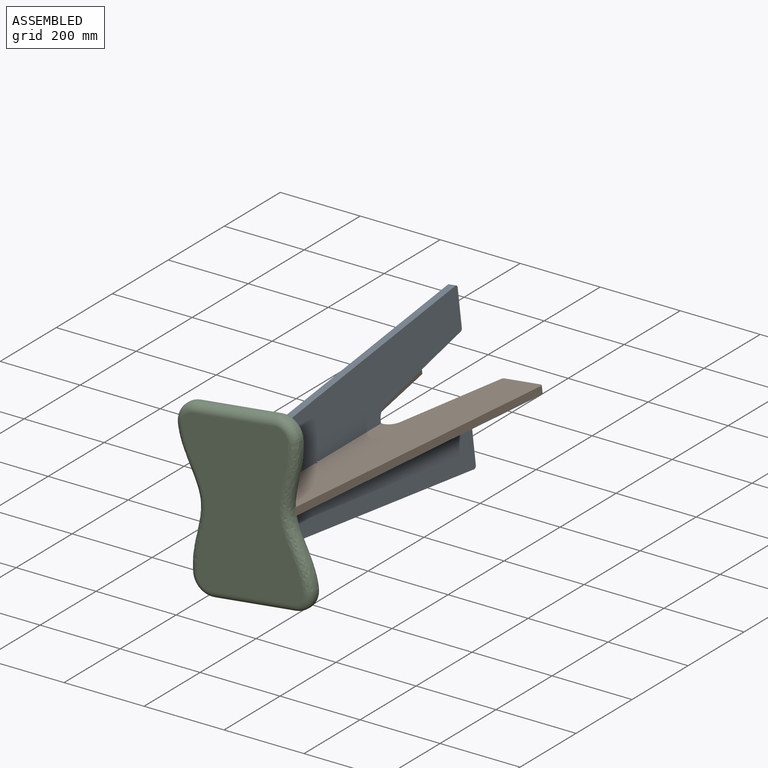
[diagram: assembled view]
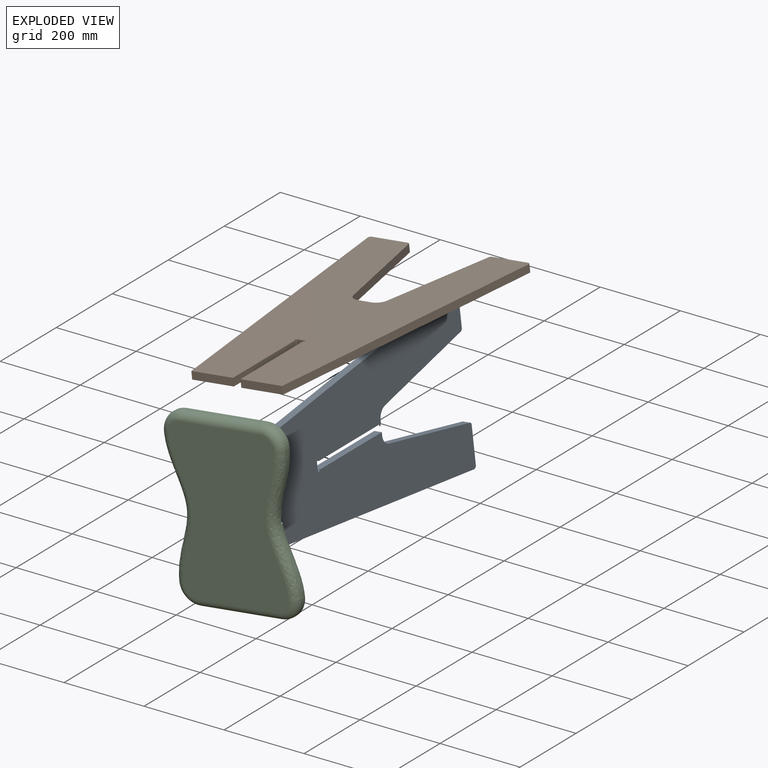
[diagram: exploded view]
GUIDED TOUR — MATED ASSEMBLY (Onshape document eadde35f4169aba6970268f0, AutoMate assembly eadde35f4169aba6970268f0_e1dc698c1c3cd5d12a92e205_ca70cda2a63ecbb2fab8a444_default)

This assembly has 3 components, labeled P0..P2 below (a component is one placed occurrence of a part; the same part can appear more than once), held together by 4 mates. A mate is a constraint between two components; its type names the relative motion it leaves free:
  PLANAR — leaves sliding in the plane through the listed point (normal = the listed direction) and rotation about that normal free.
Axis/direction vectors are unit vectors and 'through' points are millimeter coordinates, both in the assembly's world frame.

MATES
  1. PLANAR "Planar 4": P2 <-> P0, direction (0.000, 1.000, 0.000) through (-286.63, -699.38, 28.16) mm
  2. PLANAR "Planar 3": P1 <-> P0, direction (0.116, 0.000, -0.993) through (-285.52, -323.23, 18.70) mm
  3. PLANAR "Planar 2": P1 <-> P0, direction (-0.993, 0.000, -0.116) through (-276.06, -699.38, 19.80) mm
  4. PLANAR "Planar 1": P1 <-> P0, direction (0.000, -1.000, 0.000) through (-286.63, -470.78, 28.16) mm

ASSEMBLY ORDER
  1. P2 — the base component [order verified]
  2. P1 [order verified]
  3. P0 [order verified]
Order-tag legend:
  [order verified] — this step's position reverses a verified removal order: the component was checked to insert without passing through the ones already placed.

Of the 3 components, 2 carry the full construction recipe — the FeatureScript program that regenerates the part's solid from scratch; the rest are supplied as boundary geometry only.
Each toured component is shown spotlighted twice — in the assembled view, then in the exploded view, where a leader line traces a displaced component back to its assembled socket (saturated green if recipe-attached, orange if geometry-only; every other component desaturated gray) — followed by its recipe or geometry summary and the mates that hold it.
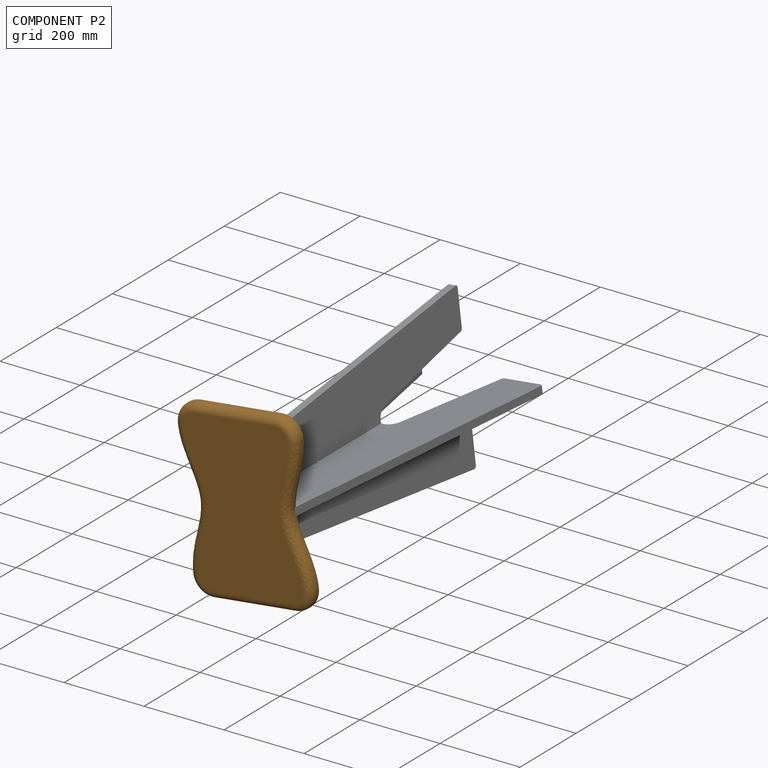
[diagram: component P2 — assembled]
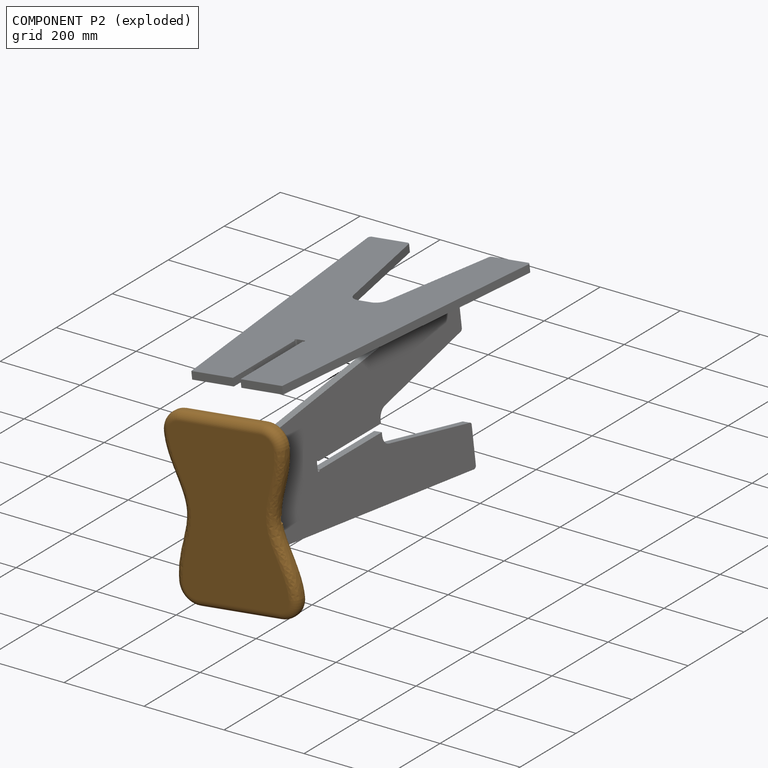
[diagram: component P2 — exploded]
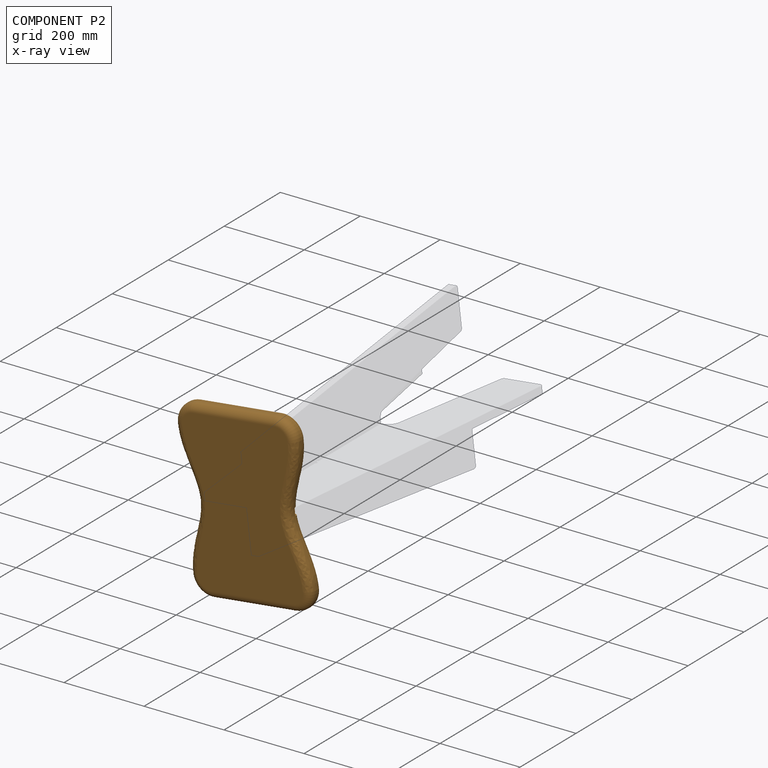
[diagram: component P2 — x-ray view]
COMPONENT P2 — geometry summary (no construction recipe available for this part):
  bounding box: 458.1 x 313.2 x 38.1 mm
  B-rep topology: 1 solid, 44 faces, 212 edges
  volume: 4208558 mm^3 (77% of its bounding box)
  symmetry: 2-fold rotationally symmetric about the z axis; mirror-symmetric across its x mid-plane, y mid-plane
Held by: PLANAR mate "Planar 4" to P0.
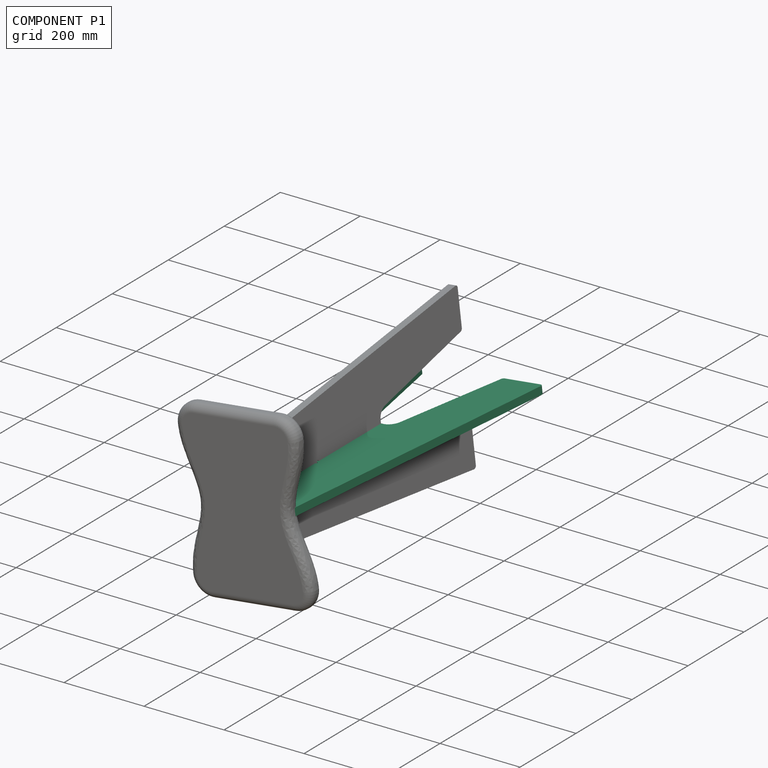
[diagram: component P1 — assembled]
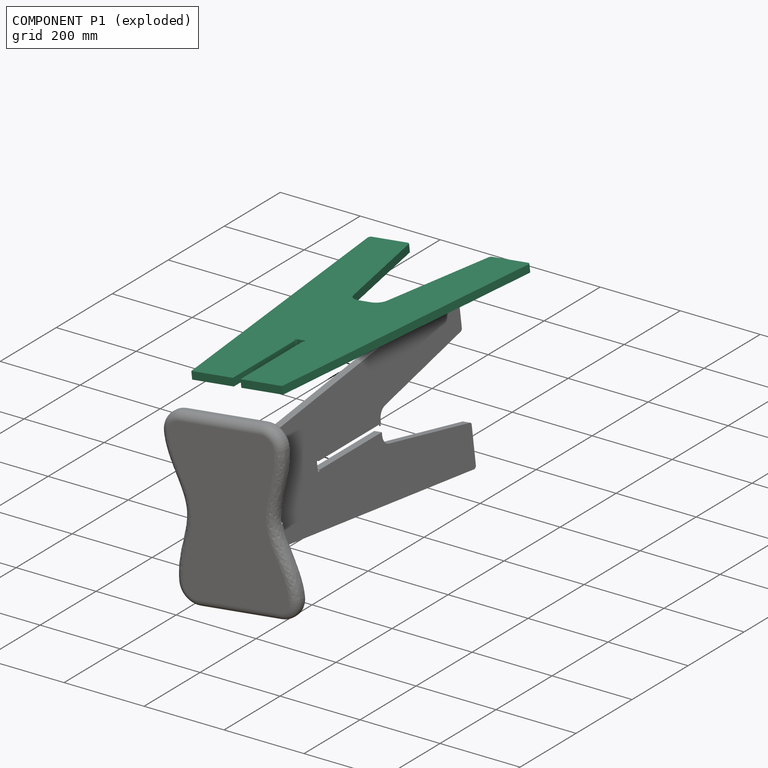
[diagram: component P1 — exploded]
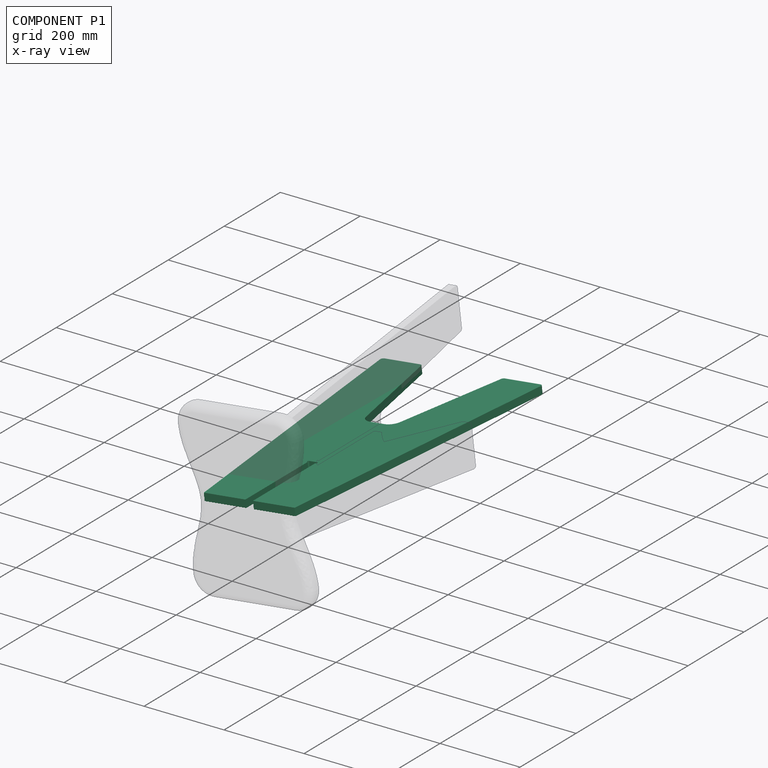
[diagram: component P1 — x-ray view]
COMPONENT P1 — recipe-attached (CADFS 00811773, mesh-verified: the recipe's output STEP matches this component's geometry to below the mesh-comparison resolution (tessellation chordal tolerance ~1.29 mm)).
Held by: PLANAR mate "Planar 3" to P0; PLANAR mate "Planar 2" to P0; PLANAR mate "Planar 1" to P0.
Construction recipe (FeatureScript — the CAD program that rebuilds this solid; sketch coordinates are in the units given by the * unit suffixes, e.g. mm):

FeatureScript 1511;
import(path : "onshape/std/geometry.fs", version : "1511.0");
import(path : "onshape/std/common.fs", version : "1511.0");
const mm = millimeter;
const VERTEX = EntityType.VERTEX;
const EDGE = EntityType.EDGE;
const FACE = EntityType.FACE;
const BODY = EntityType.BODY;
function v(x, y){return vector(x, y);}
function OD(order){return orderDisambiguation(order);}
function OSD(set){return originalSetDisambiguation(set);}
function TD(topology){return topologyDisambiguation(topology);}
function TDD(query){return trueDependencyDisambiguation(query);}
function sQuery(a, b, c) {return sketchEntityQuery(a, b, c);}

annotation { "Feature Type Name" : "Feature", "Feature Type Description" : "" }
export const myFeature = defineFeature(function(context is Context, id is Id, definition is map)
    precondition{}
    {
        {
            var Q0;
            Q0=qCreatedBy(makeId("Front.planeOp"),FACE);
            var sketch = newSketch(context, id + "F0", { "sketchPlane" : qUnion([Q0])});
            skLineSegment(sketch, "E0", {"start": v(-202.37, -297.71) * mm, "end": v(-114.3, 457.2) * mm});
            skLineSegment(sketch, "E1", {"start": v(-114.3, 457.2) * mm, "end": v(9.52, 457.2) * mm});
            skLineSegment(sketch, "E2", {"start": v(-9.53, 228.6) * mm, "end": v(9.53, 228.6) * mm});
            skLineSegment(sketch, "E3", {"start": v(9.52, 457.2) * mm, "end": v(114.3, 457.2) * mm});
            skLineSegment(sketch, "E4", {"start": v(114.3, 457.2) * mm, "end": v(202.37, -297.71) * mm});
            skLineSegment(sketch, "E5", {"start": v(196.07, -304.8) * mm, "end": v(106.76, -304.8) * mm});
            skLineSegment(sketch, "E6", {"start": v(100.55, -299.75) * mm, "end": v(42.31, -20.22) * mm});
            skLineSegment(sketch, "E7", {"start": v(17.45, 0) * mm, "end": v(9.52, 0) * mm});
            skLineSegment(sketch, "E8", {"start": v(-42.31, -20.22) * mm, "end": v(-100.55, -299.75) * mm});
            skLineSegment(sketch, "E9", {"start": v(-106.76, -304.8) * mm, "end": v(-196.07, -304.8) * mm});
            skLineSegment(sketch, "E10", {"start": v(0, 228.6) * mm, "end": v(0, 0) * mm, "construction": true});
            skPoint(sketch, "E11.visualSharp", {"position": v(-203.2, -304.8) * mm});
            skArc(sketch, "E11.filletArc", {"start": v(-202.37, -297.71) * mm, "mid": v(-200.8, -302.67) * mm, "end": v(-196.07, -304.8) * mm});
            skPoint(sketch, "E12.visualSharp", {"position": v(-101.6, -304.8) * mm});
            skArc(sketch, "E12.filletArc", {"start": v(-106.76, -304.8) * mm, "mid": v(-102.76, -303.38) * mm, "end": v(-100.55, -299.75) * mm});
            skPoint(sketch, "E13.visualSharp", {"position": v(101.6, -304.8) * mm});
            skArc(sketch, "E13.filletArc", {"start": v(100.55, -299.75) * mm, "mid": v(102.76, -303.38) * mm, "end": v(106.76, -304.8) * mm});
            skPoint(sketch, "E14.visualSharp", {"position": v(203.2, -304.8) * mm});
            skArc(sketch, "E14.filletArc", {"start": v(196.07, -304.8) * mm, "mid": v(200.8, -302.67) * mm, "end": v(202.37, -297.71) * mm});
            skPoint(sketch, "E15.visualSharp", {"position": v(-38.1, 0) * mm});
            skArc(sketch, "E15.filletArc", {"start": v(-17.45, 0) * mm, "mid": v(-33.47, -5.7) * mm, "end": v(-42.31, -20.22) * mm});
            skPoint(sketch, "E16.visualSharp", {"position": v(38.1, 0) * mm});
            skArc(sketch, "E16.filletArc", {"start": v(42.31, -20.22) * mm, "mid": v(33.47, -5.7) * mm, "end": v(17.45, 0) * mm});
            skLineSegment(sketch, "E17.MirrorCS", {"start": v(-9.53, 0) * mm, "end": v(-9.53, 222) * mm});
            skLineSegment(sketch, "E18.MirrorCS", {"start": v(9.53, 222) * mm, "end": v(9.52, 0) * mm});
            skArc(sketch, "E19.MirrorCS", {"start": v(9.53, 228.6) * mm, "mid": v(12.83, 225.3) * mm, "end": v(9.53, 222) * mm});
            skArc(sketch, "E20.MirrorCS", {"start": v(-9.53, 222) * mm, "mid": v(-12.83, 225.3) * mm, "end": v(-9.53, 228.6) * mm});
            skPoint(sketch, "E21.orphan", {"position": v(-9.53, 457.2) * mm});
            skLineSegment(sketch, "E22.trimOffspring", {"start": v(-9.53, 0) * mm, "end": v(-17.45, 0) * mm});
            skSolve(sketch);
        }
        {
            var Q0;
            Q0=makeQuery(id+"F0.imprint","IMPRINT",FACE,{"disambiguationData":[TD([[makeQuery(id+"F0.imprint","IMPRINT",EDGE,{"derivedFrom":sQuery(id+"F0.wireOp",EDGE,"E0")}),-1.0]])]});
            extrude(context, id + "F1", {"entities" : qUnion([Q0]), "depth" : 19.05 * mm, "offsetDistance" : 25.4 * mm});
        }
    });
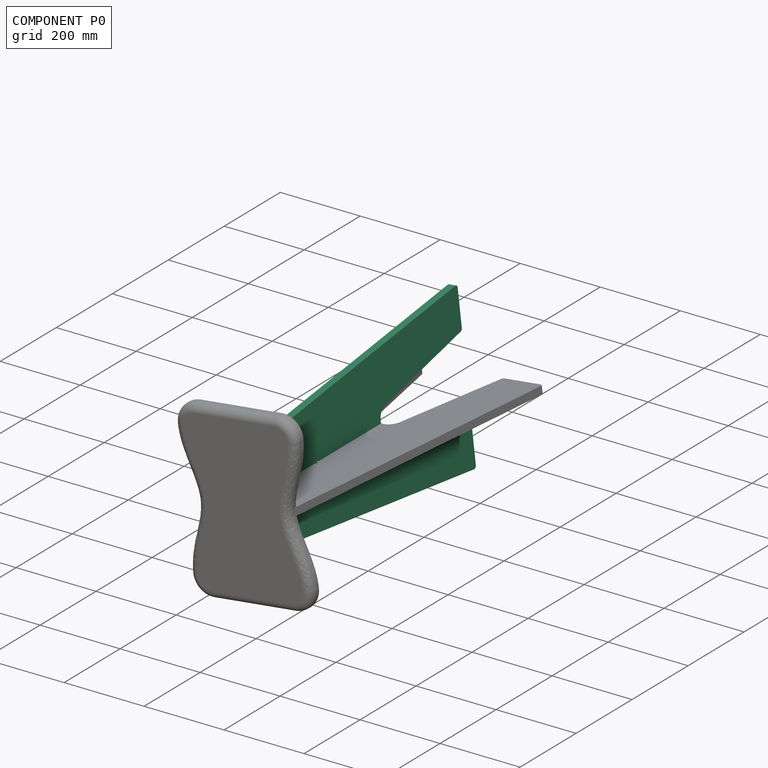
[diagram: component P0 — assembled]
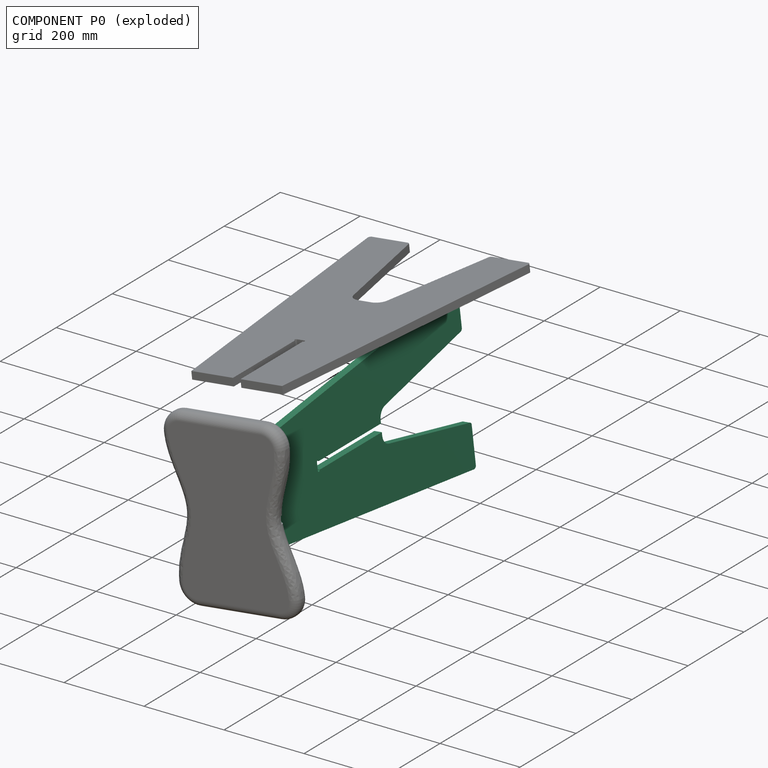
[diagram: component P0 — exploded]
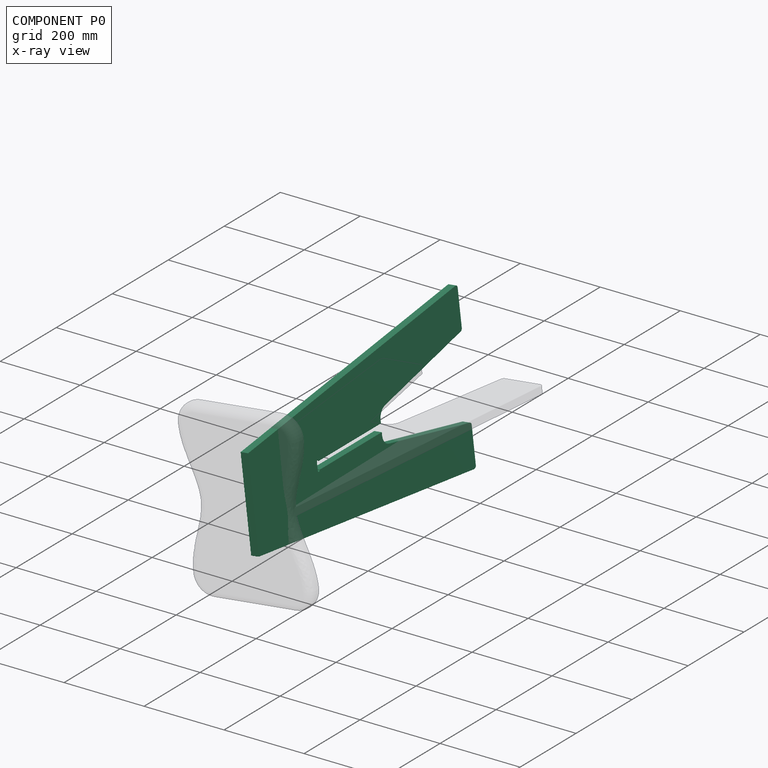
[diagram: component P0 — x-ray view]
COMPONENT P0 — recipe-attached (CADFS 00811773, mesh-verified: the recipe's output STEP matches this component's geometry to below the mesh-comparison resolution (tessellation chordal tolerance ~1.29 mm)).
Held by: PLANAR mate "Planar 4" to P2; PLANAR mate "Planar 3" to P1; PLANAR mate "Planar 2" to P1; PLANAR mate "Planar 1" to P1.
Construction recipe (FeatureScript — the CAD program that rebuilds this solid; sketch coordinates are in the units given by the * unit suffixes, e.g. mm):

FeatureScript 1511;
import(path : "onshape/std/geometry.fs", version : "1511.0");
import(path : "onshape/std/common.fs", version : "1511.0");
const mm = millimeter;
const VERTEX = EntityType.VERTEX;
const EDGE = EntityType.EDGE;
const FACE = EntityType.FACE;
const BODY = EntityType.BODY;
function v(x, y){return vector(x, y);}
function OD(order){return orderDisambiguation(order);}
function OSD(set){return originalSetDisambiguation(set);}
function TD(topology){return topologyDisambiguation(topology);}
function TDD(query){return trueDependencyDisambiguation(query);}
function sQuery(a, b, c) {return sketchEntityQuery(a, b, c);}

annotation { "Feature Type Name" : "Feature", "Feature Type Description" : "" }
export const myFeature = defineFeature(function(context is Context, id is Id, definition is map)
    precondition{}
    {
        {
            var Q0;
            Q0=qCreatedBy(makeId("Front.planeOp"),FACE);
            var sketch = newSketch(context, id + "F0", { "sketchPlane" : qUnion([Q0])});
            skLineSegment(sketch, "E0", {"start": v(-202.37, -297.71) * mm, "end": v(-114.3, 457.2) * mm});
            skLineSegment(sketch, "E1", {"start": v(-114.3, 457.2) * mm, "end": v(9.52, 457.2) * mm});
            skLineSegment(sketch, "E2", {"start": v(-9.53, 228.6) * mm, "end": v(9.53, 228.6) * mm});
            skLineSegment(sketch, "E3", {"start": v(9.52, 457.2) * mm, "end": v(114.3, 457.2) * mm});
            skLineSegment(sketch, "E4", {"start": v(114.3, 457.2) * mm, "end": v(202.37, -297.71) * mm});
            skLineSegment(sketch, "E5", {"start": v(196.07, -304.8) * mm, "end": v(106.76, -304.8) * mm});
            skLineSegment(sketch, "E6", {"start": v(100.55, -299.75) * mm, "end": v(42.31, -20.22) * mm});
            skLineSegment(sketch, "E7", {"start": v(17.45, 0) * mm, "end": v(9.52, 0) * mm});
            skLineSegment(sketch, "E8", {"start": v(-42.31, -20.22) * mm, "end": v(-100.55, -299.75) * mm});
            skLineSegment(sketch, "E9", {"start": v(-106.76, -304.8) * mm, "end": v(-196.07, -304.8) * mm});
            skLineSegment(sketch, "E10", {"start": v(0, 228.6) * mm, "end": v(0, 0) * mm, "construction": true});
            skPoint(sketch, "E11.visualSharp", {"position": v(-203.2, -304.8) * mm});
            skArc(sketch, "E11.filletArc", {"start": v(-202.37, -297.71) * mm, "mid": v(-200.8, -302.67) * mm, "end": v(-196.07, -304.8) * mm});
            skPoint(sketch, "E12.visualSharp", {"position": v(-101.6, -304.8) * mm});
            skArc(sketch, "E12.filletArc", {"start": v(-106.76, -304.8) * mm, "mid": v(-102.76, -303.38) * mm, "end": v(-100.55, -299.75) * mm});
            skPoint(sketch, "E13.visualSharp", {"position": v(101.6, -304.8) * mm});
            skArc(sketch, "E13.filletArc", {"start": v(100.55, -299.75) * mm, "mid": v(102.76, -303.38) * mm, "end": v(106.76, -304.8) * mm});
            skPoint(sketch, "E14.visualSharp", {"position": v(203.2, -304.8) * mm});
            skArc(sketch, "E14.filletArc", {"start": v(196.07, -304.8) * mm, "mid": v(200.8, -302.67) * mm, "end": v(202.37, -297.71) * mm});
            skPoint(sketch, "E15.visualSharp", {"position": v(-38.1, 0) * mm});
            skArc(sketch, "E15.filletArc", {"start": v(-17.45, 0) * mm, "mid": v(-33.47, -5.7) * mm, "end": v(-42.31, -20.22) * mm});
            skPoint(sketch, "E16.visualSharp", {"position": v(38.1, 0) * mm});
            skArc(sketch, "E16.filletArc", {"start": v(42.31, -20.22) * mm, "mid": v(33.47, -5.7) * mm, "end": v(17.45, 0) * mm});
            skLineSegment(sketch, "E17.MirrorCS", {"start": v(-9.53, 0) * mm, "end": v(-9.53, 222) * mm});
            skLineSegment(sketch, "E18.MirrorCS", {"start": v(9.53, 222) * mm, "end": v(9.52, 0) * mm});
            skArc(sketch, "E19.MirrorCS", {"start": v(9.53, 228.6) * mm, "mid": v(12.83, 225.3) * mm, "end": v(9.53, 222) * mm});
            skArc(sketch, "E20.MirrorCS", {"start": v(-9.53, 222) * mm, "mid": v(-12.83, 225.3) * mm, "end": v(-9.53, 228.6) * mm});
            skPoint(sketch, "E21.orphan", {"position": v(-9.53, 457.2) * mm});
            skLineSegment(sketch, "E22.trimOffspring", {"start": v(-9.53, 0) * mm, "end": v(-17.45, 0) * mm});
            skSolve(sketch);
        }
        {
            var Q0;
            Q0=makeQuery(id+"F0.imprint","IMPRINT",FACE,{"disambiguationData":[TD([[makeQuery(id+"F0.imprint","IMPRINT",EDGE,{"derivedFrom":sQuery(id+"F0.wireOp",EDGE,"E0")}),-1.0]])]});
            extrude(context, id + "F1", {"entities" : qUnion([Q0]), "depth" : 19.05 * mm, "offsetDistance" : 25.4 * mm});
        }
    });
PROVENANCE & LICENSES
Assembly (occurrences, transforms, mates, per-part STEP geometry): AutoMate dataset, Zenodo record 7776208, CC0.
Construction recipes: CADFS (HuggingFace VladPyatov/CADFS, CC-BY-4.0, layered over the ABC dataset), FeatureScript reconstruction programs keyed by ABC model id.
Join: ABC meta listings map ABC model id -> Onshape documentId; within a shared document, parts are matched by geometric signature (bounding-box dims + volume at 0.1% relative tolerance, exact B-rep face/solid counts).
Verification: 2 of this assembly's 3 components carry a recipe attachment, and every attachment is mesh-verified: the CADFS STEP and the AutoMate member STEP were compared as meshes in their shared local frame (symmetric sampled-point-to-mesh distance); worst across the 2 attachments: below the mesh-comparison resolution (tessellation chordal tolerance ~1.29 mm) on a 863 mm part.
Renders: orthographic iso camera (az 35 / el 25); the floor grid conveys scale (grid pitch printed in each image; no ruler). In the exploded view each component is displaced by its stored offset vector: the offsets alone carry the explosion direction (mate normal/axis signs are not orientation cues and do not encode it), and separation distances are assigned per mate-chain, not proportionally to assembly-order depth.
